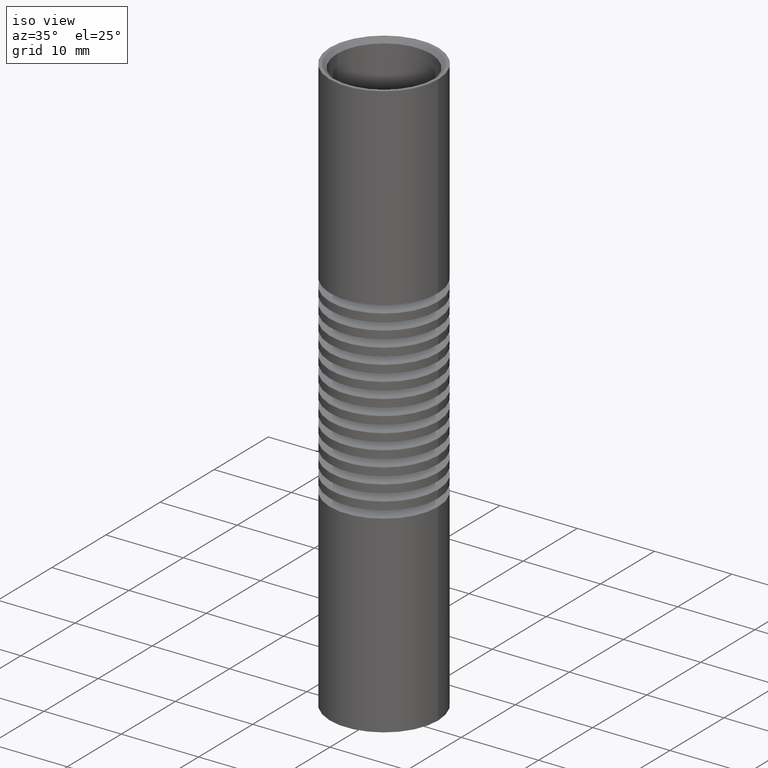
[diagram: clean part render]
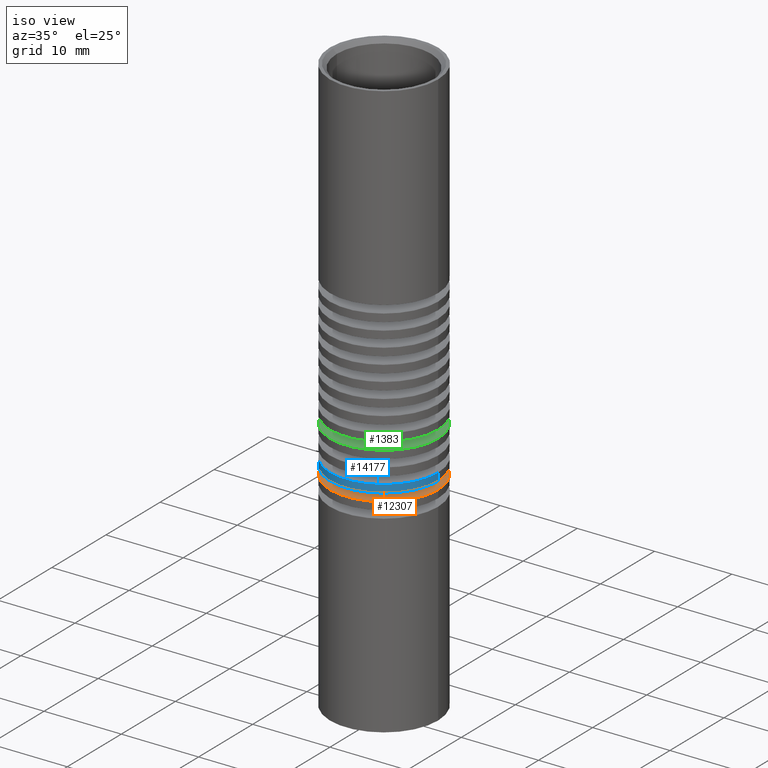
[diagram: same view with three faces highlighted in distinct colors, each labeled with its STEP entity id]
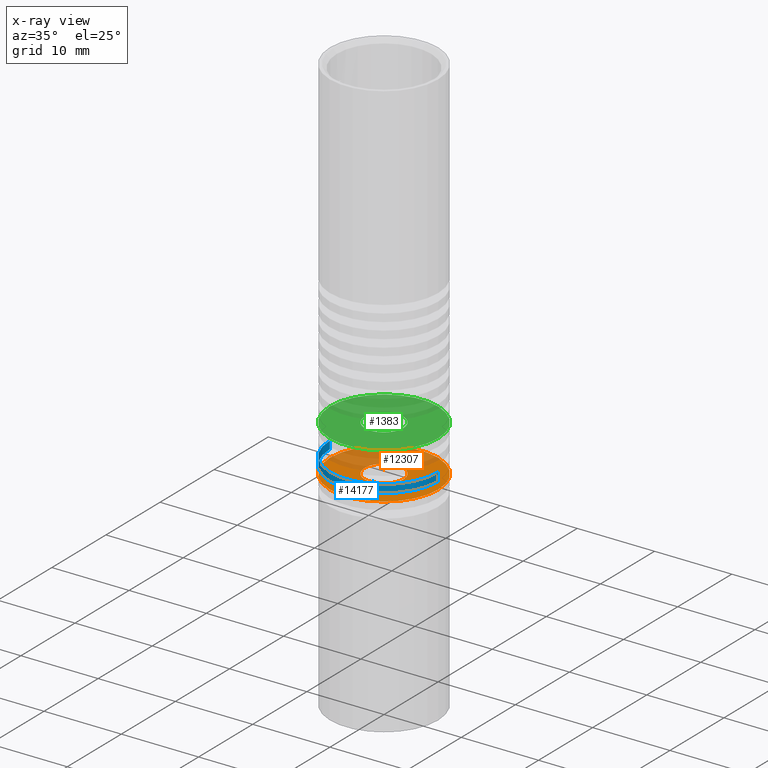
[diagram: x-ray of the same camera — body ghosted, the three highlighted faces saturated]
A machine part, iso view with three faces highlighted in distinct colors.
The next image is the same camera in x-ray (body ghosted, the three faces saturated) — at least one of them is partly hidden behind the body in this view.
Their STEP definitions:

[orange] entity #12307 — the highlighted planar face has unit normal (-0, 0, -1).
#109 = CIRCLE ( 'NONE', #13668, 7.000000000000002665 ) ;
#169 = EDGE_CURVE ( 'NONE', #10172, #10750, #109, .T. ) ;
#406 = DIRECTION ( 'NONE',  ( -2.478176394252581141E-16, 0.000000000000000000, -1.000000000000000000 ) ) ;
#450 = AXIS2_PLACEMENT_3D ( 'NONE', #4222, #870, #10904 ) ;
#728 = EDGE_LOOP ( 'NONE', ( #3311, #12174 ) ) ;
#870 = DIRECTION ( 'NONE',  ( -2.478176394252581141E-16, 0.000000000000000000, -1.000000000000000000 ) ) ;
#1258 = DIRECTION ( 'NONE',  ( -1.000000000000000000, 0.000000000000000000, 2.478176394252580648E-16 ) ) ;
#2344 = CARTESIAN_POINT ( 'NONE',  ( 0.000000000000000000, 0.000000000000000000, -10.50000000000000178 ) ) ;
#2754 = EDGE_CURVE ( 'NONE', #4311, #6194, #8858, .T. ) ;
#3311 = ORIENTED_EDGE ( 'NONE', *, *, #2754, .T. ) ;
#3373 = ORIENTED_EDGE ( 'NONE', *, *, #169, .F. ) ;
#3451 = AXIS2_PLACEMENT_3D ( 'NONE', #11019, #6690, #12247 ) ;
#4222 = CARTESIAN_POINT ( 'NONE',  ( 0.000000000000000000, 0.000000000000000000, -10.50000000000000178 ) ) ;
#4311 = VERTEX_POINT ( 'NONE', #5597 ) ;
#4472 = AXIS2_PLACEMENT_3D ( 'NONE', #10025, #12492, #8912 ) ;
#4565 = PLANE ( 'NONE',  #4472 ) ;
#5133 = ORIENTED_EDGE ( 'NONE', *, *, #9849, .F. ) ;
#5167 = FACE_BOUND ( 'NONE', #728, .T. ) ;
#5571 = CARTESIAN_POINT ( 'NONE',  ( 2.500000000000000444, 3.061616997868383634E-16, -10.50000000000000178 ) ) ;
#5597 = CARTESIAN_POINT ( 'NONE',  ( -2.500000000000000444, 0.000000000000000000, -10.50000000000000178 ) ) ;
#5931 = CIRCLE ( 'NONE', #10193, 7.000000000000002665 ) ;
#6194 = VERTEX_POINT ( 'NONE', #5571 ) ;
#6477 = DIRECTION ( 'NONE',  ( -1.000000000000000000, 0.000000000000000000, 2.478176394252580648E-16 ) ) ;
#6655 = EDGE_CURVE ( 'NONE', #6194, #4311, #9502, .T. ) ;
#6690 = DIRECTION ( 'NONE',  ( -2.478176394252581141E-16, 0.000000000000000000, -1.000000000000000000 ) ) ;
#7480 = CARTESIAN_POINT ( 'NONE',  ( 7.000000000000002665, 0.000000000000000000, -10.50000000000000355 ) ) ;
#7487 = EDGE_LOOP ( 'NONE', ( #3373, #5133 ) ) ;
#8836 = DIRECTION ( 'NONE',  ( -2.478176394252581141E-16, 0.000000000000000000, -1.000000000000000000 ) ) ;
#8858 = CIRCLE ( 'NONE', #3451, 2.500000000000000444 ) ;
#8912 = DIRECTION ( 'NONE',  ( -1.000000000000000000, 0.000000000000000000, 2.478176394252581141E-16 ) ) ;
#9392 = FACE_OUTER_BOUND ( 'NONE', #7487, .T. ) ;
#9502 = CIRCLE ( 'NONE', #450, 2.500000000000000444 ) ;
#9661 = CARTESIAN_POINT ( 'NONE',  ( -7.000000000000002665, 8.572527594031475162E-16, -10.50000000000000000 ) ) ;
#9849 = EDGE_CURVE ( 'NONE', #10750, #10172, #5931, .T. ) ;
#10025 = CARTESIAN_POINT ( 'NONE',  ( 0.000000000000000000, 0.000000000000000000, -10.50000000000000178 ) ) ;
#10172 = VERTEX_POINT ( 'NONE', #7480 ) ;
#10193 = AXIS2_PLACEMENT_3D ( 'NONE', #2344, #8836, #6477 ) ;
#10750 = VERTEX_POINT ( 'NONE', #9661 ) ;
#10904 = DIRECTION ( 'NONE',  ( -1.000000000000000000, 0.000000000000000000, 0.000000000000000000 ) ) ;
#11019 = CARTESIAN_POINT ( 'NONE',  ( 0.000000000000000000, 0.000000000000000000, -10.50000000000000178 ) ) ;
#12174 = ORIENTED_EDGE ( 'NONE', *, *, #6655, .T. ) ;
#12247 = DIRECTION ( 'NONE',  ( -1.000000000000000000, 0.000000000000000000, 0.000000000000000000 ) ) ;
#12307 = ADVANCED_FACE ( 'NONE', ( #5167, #9392 ), #4565, .F. ) ;
#12492 = DIRECTION ( 'NONE',  ( -2.478176394252581141E-16, 0.000000000000000000, -1.000000000000000000 ) ) ;
#13668 = AXIS2_PLACEMENT_3D ( 'NONE', #13891, #406, #1258 ) ;
#13891 = CARTESIAN_POINT ( 'NONE',  ( 0.000000000000000000, 0.000000000000000000, -10.50000000000000178 ) ) ;

[blue] entity #14177 — the highlighted cylindrical surface (partial cylindrical patch) has radius 7 mm, axis along (0, -0, 1).
#372 = VERTEX_POINT ( 'NONE', #3143 ) ;
#398 = CIRCLE ( 'NONE', #3519, 7.000000000000002665 ) ;
#419 = VECTOR ( 'NONE', #11564, 1000.000000000000000 ) ;
#468 = DIRECTION ( 'NONE',  ( -2.478176394252581141E-16, 0.000000000000000000, -1.000000000000000000 ) ) ;
#1124 = CARTESIAN_POINT ( 'NONE',  ( 7.000000000000002665, 0.000000000000000000, -9.500000000000007105 ) ) ;
#1209 = CARTESIAN_POINT ( 'NONE',  ( -2.478176394252581634E-16, 0.000000000000000000, -9.500000000000005329 ) ) ;
#1518 = CARTESIAN_POINT ( 'NONE',  ( -2.478176394252581634E-16, 0.000000000000000000, -9.500000000000005329 ) ) ;
#1848 = FACE_OUTER_BOUND ( 'NONE', #8016, .T. ) ;
#2453 = DIRECTION ( 'NONE',  ( -1.000000000000000000, 0.000000000000000000, 2.478176394252580648E-16 ) ) ;
#2924 = EDGE_CURVE ( 'NONE', #13460, #5974, #3918, .T. ) ;
#3143 = CARTESIAN_POINT ( 'NONE',  ( 7.000000000000002665, 0.000000000000000000, -8.500000000000005329 ) ) ;
#3485 = DIRECTION ( 'NONE',  ( 2.478176394252581634E-16, -0.000000000000000000, 1.000000000000000000 ) ) ;
#3519 = AXIS2_PLACEMENT_3D ( 'NONE', #7221, #468, #5340 ) ;
#3564 = ORIENTED_EDGE ( 'NONE', *, *, #14090, .F. ) ;
#3918 = CIRCLE ( 'NONE', #14000, 7.000000000000002665 ) ;
#4558 = CARTESIAN_POINT ( 'NONE',  ( 7.000000000000002665, 0.000000000000000000, -9.500000000000007105 ) ) ;
#4801 = VERTEX_POINT ( 'NONE', #12316 ) ;
#5019 = DIRECTION ( 'NONE',  ( 1.000000000000000000, 0.000000000000000000, -2.478176394252580648E-16 ) ) ;
#5340 = DIRECTION ( 'NONE',  ( -1.000000000000000000, 0.000000000000000000, 2.478176394252580648E-16 ) ) ;
#5974 = VERTEX_POINT ( 'NONE', #8285 ) ;
#6050 = CARTESIAN_POINT ( 'NONE',  ( -7.000000000000002665, 8.572527594031475162E-16, -9.500000000000003553 ) ) ;
#6825 = EDGE_CURVE ( 'NONE', #13460, #372, #7218, .T. ) ;
#7218 = LINE ( 'NONE', #4558, #11777 ) ;
#7221 = CARTESIAN_POINT ( 'NONE',  ( 0.000000000000000000, 0.000000000000000000, -8.500000000000003553 ) ) ;
#7491 = CYLINDRICAL_SURFACE ( 'NONE', #8348, 7.000000000000002665 ) ;
#8016 = EDGE_LOOP ( 'NONE', ( #3564, #12829, #13200, #10642 ) ) ;
#8285 = CARTESIAN_POINT ( 'NONE',  ( -7.000000000000002665, 8.572527594031475162E-16, -9.500000000000003553 ) ) ;
#8348 = AXIS2_PLACEMENT_3D ( 'NONE', #1518, #11608, #5019 ) ;
#8537 = LINE ( 'NONE', #6050, #419 ) ;
#10642 = ORIENTED_EDGE ( 'NONE', *, *, #12573, .T. ) ;
#11564 = DIRECTION ( 'NONE',  ( 2.478176394252581634E-16, -0.000000000000000000, 1.000000000000000000 ) ) ;
#11608 = DIRECTION ( 'NONE',  ( 2.478176394252581634E-16, -0.000000000000000000, 1.000000000000000000 ) ) ;
#11777 = VECTOR ( 'NONE', #3485, 1000.000000000000000 ) ;
#12316 = CARTESIAN_POINT ( 'NONE',  ( -7.000000000000002665, 8.572527594031475162E-16, -8.500000000000001776 ) ) ;
#12573 = EDGE_CURVE ( 'NONE', #372, #4801, #398, .T. ) ;
#12829 = ORIENTED_EDGE ( 'NONE', *, *, #2924, .F. ) ;
#13200 = ORIENTED_EDGE ( 'NONE', *, *, #6825, .T. ) ;
#13460 = VERTEX_POINT ( 'NONE', #1124 ) ;
#14000 = AXIS2_PLACEMENT_3D ( 'NONE', #1209, #14605, #2453 ) ;
#14090 = EDGE_CURVE ( 'NONE', #5974, #4801, #8537, .T. ) ;
#14177 = ADVANCED_FACE ( 'NONE', ( #1848 ), #7491, .T. ) ;
#14605 = DIRECTION ( 'NONE',  ( -2.478176394252581141E-16, 0.000000000000000000, -1.000000000000000000 ) ) ;

[green] entity #1383 — the highlighted planar face has unit normal (-0, 0, -1).
#1207 = EDGE_CURVE ( 'NONE', #6082, #6159, #14014, .T. ) ;
#1383 = ADVANCED_FACE ( 'NONE', ( #7706, #8039 ), #2687, .F. ) ;
#1572 = EDGE_LOOP ( 'NONE', ( #11145, #7444 ) ) ;
#1843 = DIRECTION ( 'NONE',  ( -2.478176394252581141E-16, 0.000000000000000000, -1.000000000000000000 ) ) ;
#2083 = AXIS2_PLACEMENT_3D ( 'NONE', #11317, #5761, #4533 ) ;
#2238 = CIRCLE ( 'NONE', #11705, 7.000000000000002665 ) ;
#2392 = DIRECTION ( 'NONE',  ( -2.478176394252581141E-16, 0.000000000000000000, -1.000000000000000000 ) ) ;
#2397 = CARTESIAN_POINT ( 'NONE',  ( 0.000000000000000000, 0.000000000000000000, -4.500000000000003553 ) ) ;
#2686 = VERTEX_POINT ( 'NONE', #6496 ) ;
#2687 = PLANE ( 'NONE',  #6357 ) ;
#3516 = DIRECTION ( 'NONE',  ( -2.478176394252581141E-16, 0.000000000000000000, -1.000000000000000000 ) ) ;
#3655 = DIRECTION ( 'NONE',  ( -2.478176394252581141E-16, 0.000000000000000000, -1.000000000000000000 ) ) ;
#3948 = DIRECTION ( 'NONE',  ( -1.000000000000000000, 0.000000000000000000, 2.478176394252581141E-16 ) ) ;
#4533 = DIRECTION ( 'NONE',  ( -1.000000000000000000, 0.000000000000000000, 3.469446951953613696E-16 ) ) ;
#4631 = ORIENTED_EDGE ( 'NONE', *, *, #9946, .F. ) ;
#5761 = DIRECTION ( 'NONE',  ( -2.478176394252581141E-16, 0.000000000000000000, -1.000000000000000000 ) ) ;
#6082 = VERTEX_POINT ( 'NONE', #12008 ) ;
#6159 = VERTEX_POINT ( 'NONE', #14229 ) ;
#6357 = AXIS2_PLACEMENT_3D ( 'NONE', #9757, #1843, #3948 ) ;
#6496 = CARTESIAN_POINT ( 'NONE',  ( 7.000000000000002665, 0.000000000000000000, -4.500000000000005329 ) ) ;
#6518 = AXIS2_PLACEMENT_3D ( 'NONE', #2397, #3655, #9140 ) ;
#7444 = ORIENTED_EDGE ( 'NONE', *, *, #1207, .T. ) ;
#7706 = FACE_BOUND ( 'NONE', #1572, .T. ) ;
#7745 = EDGE_CURVE ( 'NONE', #6159, #6082, #10036, .T. ) ;
#7999 = CARTESIAN_POINT ( 'NONE',  ( 0.000000000000000000, 0.000000000000000000, -4.500000000000003553 ) ) ;
#8039 = FACE_OUTER_BOUND ( 'NONE', #8733, .T. ) ;
#8274 = ORIENTED_EDGE ( 'NONE', *, *, #9989, .F. ) ;
#8733 = EDGE_LOOP ( 'NONE', ( #4631, #8274 ) ) ;
#8959 = CARTESIAN_POINT ( 'NONE',  ( -7.000000000000002665, 8.572527594031475162E-16, -4.500000000000002665 ) ) ;
#9140 = DIRECTION ( 'NONE',  ( -1.000000000000000000, 0.000000000000000000, 3.469446951953613696E-16 ) ) ;
#9185 = CARTESIAN_POINT ( 'NONE',  ( 0.000000000000000000, 0.000000000000000000, -4.500000000000003553 ) ) ;
#9757 = CARTESIAN_POINT ( 'NONE',  ( 0.000000000000000000, 0.000000000000000000, -4.500000000000003553 ) ) ;
#9946 = EDGE_CURVE ( 'NONE', #2686, #11102, #2238, .T. ) ;
#9989 = EDGE_CURVE ( 'NONE', #11102, #2686, #10496, .T. ) ;
#10036 = CIRCLE ( 'NONE', #2083, 2.500000000000000444 ) ;
#10496 = CIRCLE ( 'NONE', #13499, 7.000000000000002665 ) ;
#11102 = VERTEX_POINT ( 'NONE', #8959 ) ;
#11145 = ORIENTED_EDGE ( 'NONE', *, *, #7745, .T. ) ;
#11317 = CARTESIAN_POINT ( 'NONE',  ( 0.000000000000000000, 0.000000000000000000, -4.500000000000003553 ) ) ;
#11430 = DIRECTION ( 'NONE',  ( -1.000000000000000000, 0.000000000000000000, 2.478176394252580648E-16 ) ) ;
#11705 = AXIS2_PLACEMENT_3D ( 'NONE', #9185, #2392, #11430 ) ;
#12008 = CARTESIAN_POINT ( 'NONE',  ( 2.500000000000000444, 3.061616997868383634E-16, -4.500000000000004441 ) ) ;
#12286 = DIRECTION ( 'NONE',  ( -1.000000000000000000, 0.000000000000000000, 2.478176394252580648E-16 ) ) ;
#13499 = AXIS2_PLACEMENT_3D ( 'NONE', #7999, #3516, #12286 ) ;
#14014 = CIRCLE ( 'NONE', #6518, 2.500000000000000444 ) ;
#14229 = CARTESIAN_POINT ( 'NONE',  ( -2.500000000000000444, 0.000000000000000000, -4.500000000000003553 ) ) ;